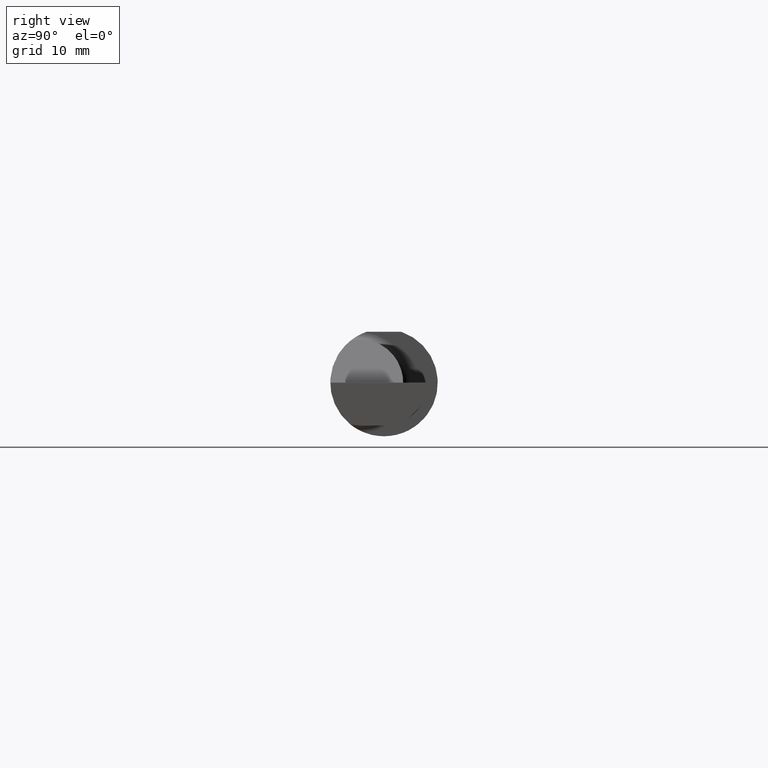
[diagram: clean part render]
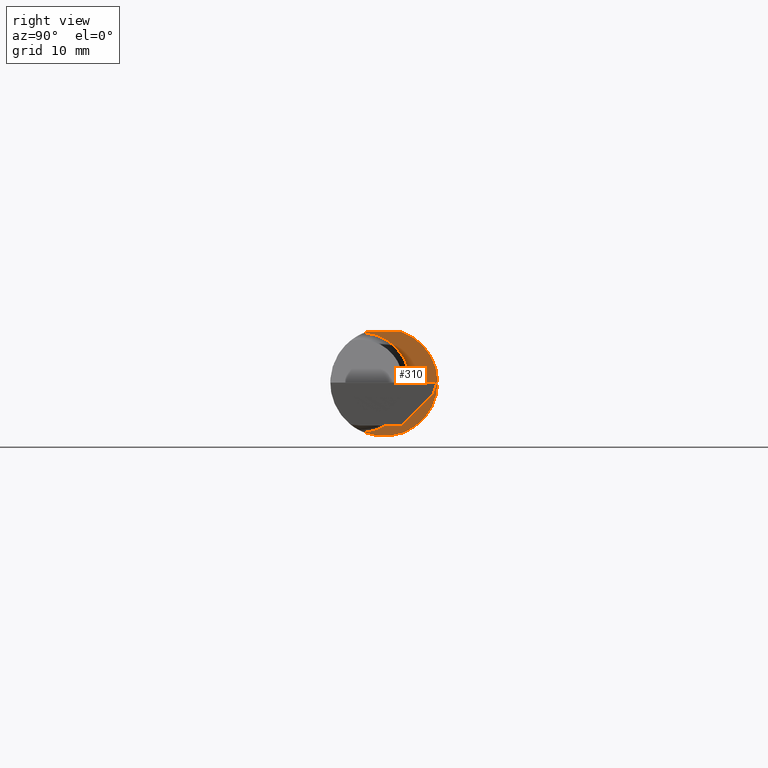
[diagram: same view with one face highlighted and labeled with its STEP entity id]
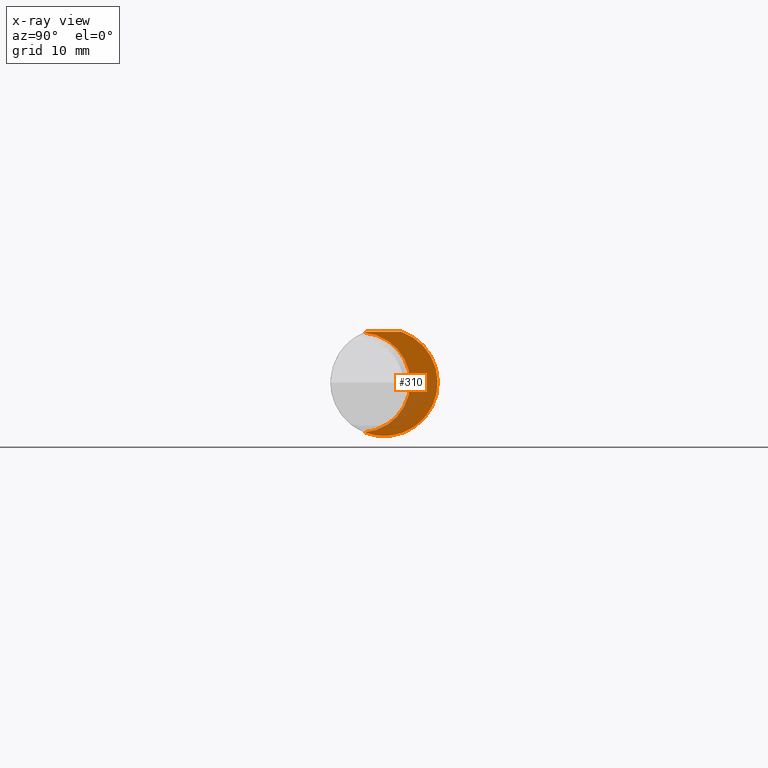
[diagram: x-ray of the same camera — body ghosted, the highlighted face saturated]
A machine part, right view. The second image highlights one B-rep face of the part: STEP entity #310.
The next image is the same camera in x-ray: the body ghosted, the highlighted face saturated — about 27% of this face is hidden behind the body in this view.
In plain terms, the highlighted planar face has unit normal (1, 0, 0).
Its self-contained STEP definition (entity closure, byte-faithful):
#12 = EDGE_CURVE ( 'NONE', #1002, #914, #771, .T. ) ;
#48 = ORIENTED_EDGE ( 'NONE', *, *, #12, .T. ) ;
#79 = CARTESIAN_POINT ( 'NONE',  ( 1.450000000000000178, 0.06039039658754216666, 0.1773499999999999799 ) ) ;
#98 = LINE ( 'NONE', #749, #906 ) ;
#139 = DIRECTION ( 'NONE',  ( 1.000000000000000000, 0.000000000000000000, 0.000000000000000000 ) ) ;
#193 = ORIENTED_EDGE ( 'NONE', *, *, #390, .T. ) ;
#232 = DIRECTION ( 'NONE',  ( 0.000000000000000000, 0.000000000000000000, -1.000000000000000000 ) ) ;
#252 = CIRCLE ( 'NONE', #580, 0.1873499999999999888 ) ;
#273 = AXIS2_PLACEMENT_3D ( 'NONE', #726, #304, #1035 ) ;
#304 = DIRECTION ( 'NONE',  ( 1.000000000000000000, 0.000000000000000000, 0.000000000000000000 ) ) ;
#305 = CARTESIAN_POINT ( 'NONE',  ( 1.450000000000000178, -0.08334999999999996578, 0.000000000000000000 ) ) ;
#310 = ADVANCED_FACE ( 'NONE', ( #952 ), #884, .T. ) ;
#321 = ORIENTED_EDGE ( 'NONE', *, *, #637, .T. ) ;
#347 = AXIS2_PLACEMENT_3D ( 'NONE', #702, #706, #713 ) ;
#349 = AXIS2_PLACEMENT_3D ( 'NONE', #305, #954, #394 ) ;
#390 = EDGE_CURVE ( 'NONE', #810, #1002, #716, .T. ) ;
#394 = DIRECTION ( 'NONE',  ( 0.000000000000000000, 0.000000000000000000, 1.000000000000000000 ) ) ;
#395 = CARTESIAN_POINT ( 'NONE',  ( 1.450000000000000178, -0.06851976604679065053, -0.1743704796142198643 ) ) ;
#438 = CARTESIAN_POINT ( 'NONE',  ( 1.450000000000000178, -0.06851976604679065053, 0.1743704796142198643 ) ) ;
#494 = EDGE_CURVE ( 'NONE', #810, #929, #98, .T. ) ;
#580 = AXIS2_PLACEMENT_3D ( 'NONE', #1034, #139, #232 ) ;
#637 = EDGE_CURVE ( 'NONE', #914, #929, #252, .T. ) ;
#666 = DIRECTION ( 'NONE',  ( -0.000000000000000000, 1.000000000000000000, 0.000000000000000000 ) ) ;
#702 = CARTESIAN_POINT ( 'NONE',  ( 1.450000000000000178, 0.000000000000000000, 0.000000000000000000 ) ) ;
#706 = DIRECTION ( 'NONE',  ( 1.000000000000000000, 0.000000000000000000, 0.000000000000000000 ) ) ;
#713 = DIRECTION ( 'NONE',  ( 0.000000000000000000, 0.000000000000000000, -1.000000000000000000 ) ) ;
#716 = CIRCLE ( 'NONE', #347, 0.1873499999999999888 ) ;
#726 = CARTESIAN_POINT ( 'NONE',  ( 1.450000000000000178, 0.2666499999999999426, 0.000000000000000000 ) ) ;
#749 = CARTESIAN_POINT ( 'NONE',  ( 1.450000000000000178, -0.1873500000000000165, 0.1773499999999999799 ) ) ;
#771 = CIRCLE ( 'NONE', #349, 0.1749999999999999889 ) ;
#776 = CARTESIAN_POINT ( 'NONE',  ( 1.450000000000000178, -0.06039039658753699025, 0.1773499999999999799 ) ) ;
#810 = VERTEX_POINT ( 'NONE', #776 ) ;
#858 = EDGE_LOOP ( 'NONE', ( #321, #998, #193, #48 ) ) ;
#884 = PLANE ( 'NONE',  #273 ) ;
#906 = VECTOR ( 'NONE', #666, 39.37007874015748143 ) ;
#914 = VERTEX_POINT ( 'NONE', #395 ) ;
#929 = VERTEX_POINT ( 'NONE', #79 ) ;
#952 = FACE_OUTER_BOUND ( 'NONE', #858, .T. ) ;
#954 = DIRECTION ( 'NONE',  ( -1.000000000000000000, -0.000000000000000000, -0.000000000000000000 ) ) ;
#998 = ORIENTED_EDGE ( 'NONE', *, *, #494, .F. ) ;
#1002 = VERTEX_POINT ( 'NONE', #438 ) ;
#1034 = CARTESIAN_POINT ( 'NONE',  ( 1.450000000000000178, 0.000000000000000000, 0.000000000000000000 ) ) ;
#1035 = DIRECTION ( 'NONE',  ( 0.000000000000000000, 0.000000000000000000, -1.000000000000000000 ) ) ;